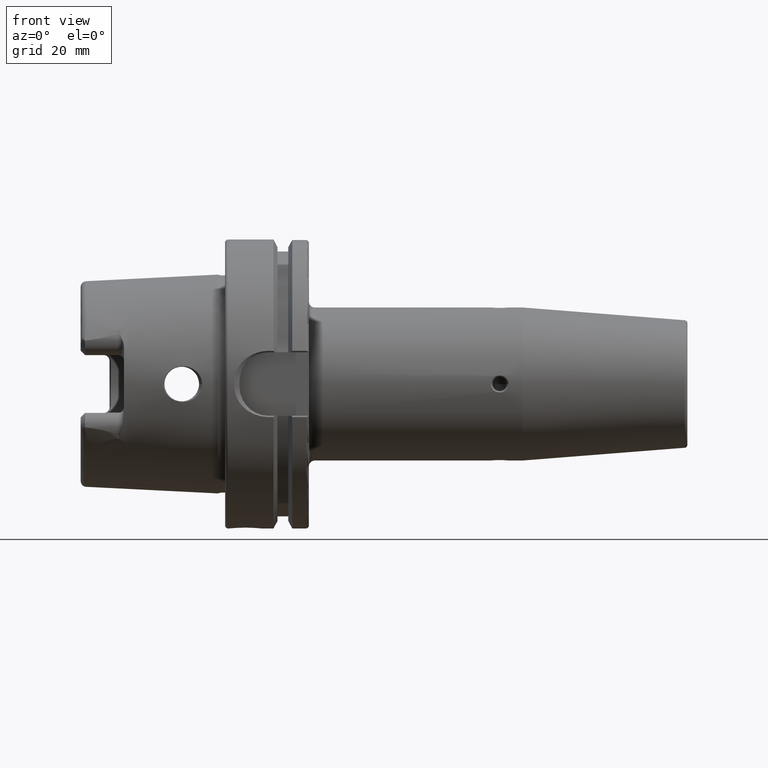
[diagram: clean part render]
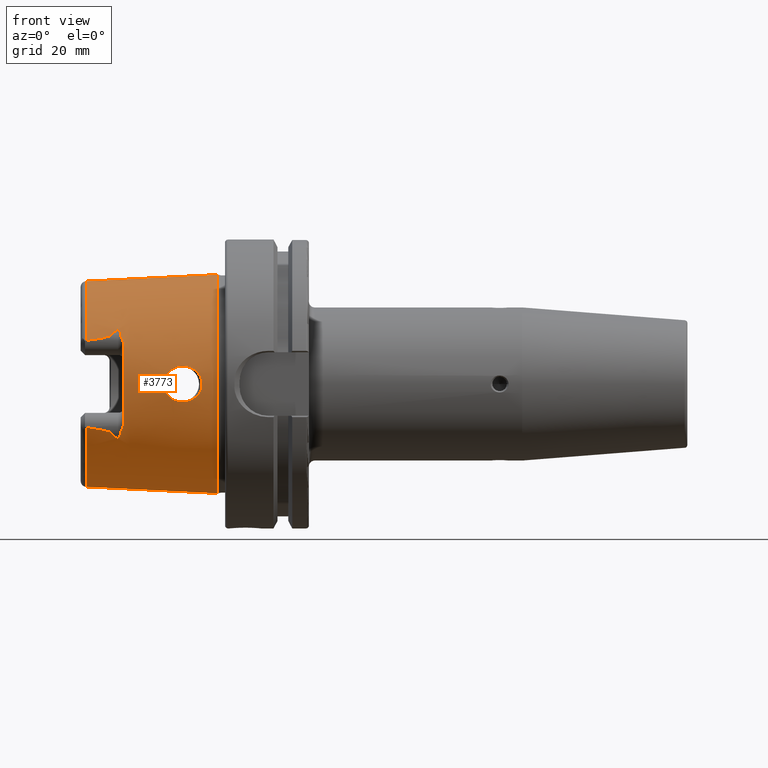
[diagram: same view with one face highlighted and labeled with its STEP entity id]
A machine part, front view. The second image highlights one B-rep face of the part: STEP entity #3773.
In plain terms, the highlighted conical surface has half-angle 2.868 deg.
Its self-contained STEP definition (entity closure, byte-faithful):
#563=CARTESIAN_POINT('',(-4.810007223652E1,0.E0,0.E0));
#564=DIRECTION('',(-1.E0,0.E0,0.E0));
#565=DIRECTION('',(0.E0,0.E0,-1.E0));
#566=AXIS2_PLACEMENT_3D('',#563,#564,#565);
#568=CARTESIAN_POINT('',(-4.810007223652E1,-3.224696179732E1,
-1.506217324853E1));
#569=CARTESIAN_POINT('',(-4.777360069517E1,-3.224548583089E1,
-1.510398132229E1));
#570=CARTESIAN_POINT('',(-4.714682661249E1,-3.224149457937E1,
-1.518642807106E1));
#571=CARTESIAN_POINT('',(-4.628821581015E1,-3.223275009228E1,
-1.530552436866E1));
#572=CARTESIAN_POINT('',(-4.550172633149E1,-3.222150544266E1,
-1.542067134837E1));
#573=CARTESIAN_POINT('',(-4.478272229601E1,-3.220801640303E1,
-1.553192810313E1));
#574=CARTESIAN_POINT('',(-4.412465498909E1,-3.219245805685E1,
-1.563973708073E1));
#575=CARTESIAN_POINT('',(-4.352812958915E1,-3.217518175865E1,
-1.574335904885E1));
#576=CARTESIAN_POINT('',(-4.297638076819E1,-3.215598290206E1,
-1.584517341014E1));
#577=CARTESIAN_POINT('',(-4.246249387710E1,-3.213465547674E1,
-1.594638174386E1));
#578=CARTESIAN_POINT('',(-4.199781054664E1,-3.211183219682E1,
-1.604444123174E1));
#579=CARTESIAN_POINT('',(-4.157660162559E1,-3.208752087521E1,
-1.614001806822E1));
#580=CARTESIAN_POINT('',(-4.119332287953E1,-3.206166014240E1,
-1.623388596894E1));
#581=CARTESIAN_POINT('',(-4.082879220140E1,-3.203269316235E1,
-1.633122029698E1));
#582=CARTESIAN_POINT('',(-4.050411641382E1,-3.200206181048E1,
-1.642681273963E1));
#583=CARTESIAN_POINT('',(-4.021075821857E1,-3.196901235432E1,
-1.652307556024E1));
#584=CARTESIAN_POINT('',(-3.994950560686E1,-3.193344313811E1,
-1.662009558326E1));
#585=CARTESIAN_POINT('',(-3.970678950238E1,-3.189232633230E1,
-1.672507831970E1));
#586=CARTESIAN_POINT('',(-3.949471925497E1,-3.184524591038E1,
-1.683731871866E1));
#587=CARTESIAN_POINT('',(-3.931880041211E1,-3.178931640268E1,
-1.696144986537E1));
#588=CARTESIAN_POINT('',(-3.923721705480E1,-3.174420636716E1,
-1.705426024174E1));
#589=CARTESIAN_POINT('',(-3.921043051466E1,-3.171811183804E1,
-1.710547363873E1));
#591=CARTESIAN_POINT('',(-3.921043051466E1,-3.171811183804E1,
-1.710547363873E1));
#592=CARTESIAN_POINT('',(-3.912164470743E1,-3.163161974835E1,
-1.727522392260E1));
#593=CARTESIAN_POINT('',(-3.888908420758E1,-3.146308992929E1,
-1.760598231598E1));
#594=CARTESIAN_POINT('',(-3.838653397102E1,-3.121775508141E1,
-1.808747906580E1));
#595=CARTESIAN_POINT('',(-3.775838340238E1,-3.098434250983E1,
-1.854557703089E1));
#596=CARTESIAN_POINT('',(-3.726505743858E1,-3.083475971722E1,
-1.883914979111E1));
#597=CARTESIAN_POINT('',(-3.7E1,-3.076088555164E1,-1.898413600456E1));
#599=CARTESIAN_POINT('',(-3.7E1,-3.076088555164E1,1.898413600456E1));
#600=CARTESIAN_POINT('',(-3.726516596225E1,-3.083478996385E1,1.883909042875E1));
#601=CARTESIAN_POINT('',(-3.775862170071E1,-3.098441804306E1,1.854542878857E1));
#602=CARTESIAN_POINT('',(-3.838674185116E1,-3.121784849884E1,1.808729572376E1));
#603=CARTESIAN_POINT('',(-3.888904434091E1,-3.146307659762E1,1.760600848086E1));
#604=CARTESIAN_POINT('',(-3.912163315465E1,-3.163160849403E1,1.727524601044E1));
#605=CARTESIAN_POINT('',(-3.921043051466E1,-3.171811183804E1,1.710547363873E1));
#607=CARTESIAN_POINT('',(-4.810007223652E1,-3.224696179732E1,1.506217324853E1));
#608=CARTESIAN_POINT('',(-4.777360069517E1,-3.224548583089E1,1.510398132229E1));
#609=CARTESIAN_POINT('',(-4.714682661249E1,-3.224149457937E1,1.518642807106E1));
#610=CARTESIAN_POINT('',(-4.628821581015E1,-3.223275009228E1,1.530552436866E1));
#611=CARTESIAN_POINT('',(-4.550172633149E1,-3.222150544266E1,1.542067134837E1));
#612=CARTESIAN_POINT('',(-4.478272229601E1,-3.220801640303E1,1.553192810313E1));
#613=CARTESIAN_POINT('',(-4.412465498909E1,-3.219245805685E1,1.563973708073E1));
#614=CARTESIAN_POINT('',(-4.352812958915E1,-3.217518175865E1,1.574335904885E1));
#615=CARTESIAN_POINT('',(-4.297638076819E1,-3.215598290206E1,1.584517341014E1));
#616=CARTESIAN_POINT('',(-4.246249387710E1,-3.213465547674E1,1.594638174386E1));
#617=CARTESIAN_POINT('',(-4.199781054664E1,-3.211183219682E1,1.604444123174E1));
#618=CARTESIAN_POINT('',(-4.157660162559E1,-3.208752087521E1,1.614001806822E1));
#619=CARTESIAN_POINT('',(-4.119332287953E1,-3.206166014240E1,1.623388596894E1));
#620=CARTESIAN_POINT('',(-4.082879220140E1,-3.203269316235E1,1.633122029698E1));
#621=CARTESIAN_POINT('',(-4.050411641382E1,-3.200206181048E1,1.642681273963E1));
#622=CARTESIAN_POINT('',(-4.021075821857E1,-3.196901235432E1,1.652307556024E1));
#623=CARTESIAN_POINT('',(-3.994950560686E1,-3.193344313811E1,1.662009558326E1));
#624=CARTESIAN_POINT('',(-3.970678950238E1,-3.189232633230E1,1.672507831970E1));
#625=CARTESIAN_POINT('',(-3.949471925497E1,-3.184524591038E1,1.683731871866E1));
#626=CARTESIAN_POINT('',(-3.931880041211E1,-3.178931640268E1,1.696144986537E1));
#627=CARTESIAN_POINT('',(-3.923721705480E1,-3.174420636716E1,1.705426024174E1));
#628=CARTESIAN_POINT('',(-3.921043051466E1,-3.171811183804E1,1.710547363873E1));
#630=CARTESIAN_POINT('',(-4.810007223652E1,0.E0,0.E0));
#631=DIRECTION('',(-1.E0,0.E0,0.E0));
#632=DIRECTION('',(0.E0,-9.060367502718E-1,4.231990160161E-1));
#633=AXIS2_PLACEMENT_3D('',#630,#631,#632);
#635=DIRECTION('',(-9.987493463681E-1,-1.021037123262E-10,-4.999743122625E-2));
#636=VECTOR('',#635,4.565708494450E1);
#637=CARTESIAN_POINT('',(-2.500088491128E0,4.656021286601E-9,3.787396633533E1));
#638=LINE('',#637,#636);
#639=CARTESIAN_POINT('',(-2.500088491128E0,-4.656014655163E-9,
-3.787396633533E1));
#640=CARTESIAN_POINT('',(-2.500088444509E0,-1.888740103895E0,
-3.787396633766E1));
#641=CARTESIAN_POINT('',(-2.516262056837E0,-5.666079603161E0,
-3.759267172396E1));
#642=CARTESIAN_POINT('',(-2.509761497294E0,-1.120563070156E1,
-3.632759442673E1));
#643=CARTESIAN_POINT('',(-2.511503316973E0,-1.649483625087E1,
-3.425192363796E1));
#644=CARTESIAN_POINT('',(-2.511036597801E0,-2.141558255922E1,
-3.141087897888E1));
#645=CARTESIAN_POINT('',(-2.511161654810E0,-2.585793792374E1,
-2.786823218789E1));
#646=CARTESIAN_POINT('',(-2.511128145945E0,-2.972267027537E1,
-2.370303773769E1));
#647=CARTESIAN_POINT('',(-2.511137124397E0,-3.292344714483E1,
-1.900836124902E1));
#648=CARTESIAN_POINT('',(-2.511134719454E0,-3.538876865595E1,
-1.388906812416E1));
#649=CARTESIAN_POINT('',(-2.511135360772E0,-3.706356354030E1,
-8.459516514521E0));
#650=CARTESIAN_POINT('',(-2.511135200443E0,-3.791041966799E1,
-2.840993193300E0));
#651=CARTESIAN_POINT('',(-2.511135200443E0,-3.791041966828E1,2.840993189549E0));
#652=CARTESIAN_POINT('',(-2.511135360772E0,-3.706356354113E1,8.459516510869E0));
#653=CARTESIAN_POINT('',(-2.511134719454E0,-3.538876865733E1,1.388906812065E1));
#654=CARTESIAN_POINT('',(-2.511137124397E0,-3.292344714673E1,1.900836124573E1));
#655=CARTESIAN_POINT('',(-2.511128145943E0,-2.972267027773E1,2.370303773475E1));
#656=CARTESIAN_POINT('',(-2.511161654817E0,-2.585793792634E1,2.786823218546E1));
#657=CARTESIAN_POINT('',(-2.511036597775E0,-2.141558256255E1,3.141087897660E1));
#658=CARTESIAN_POINT('',(-2.511503317070E0,-1.649483625404E1,3.425192363652E1));
#659=CARTESIAN_POINT('',(-2.509761496931E0,-1.120563070542E1,3.632759442522E1));
#660=CARTESIAN_POINT('',(-2.516262058192E0,-5.666079609414E0,3.759267172378E1));
#661=CARTESIAN_POINT('',(-2.500088441588E0,-1.888740095305E0,3.787396633781E1));
#662=CARTESIAN_POINT('',(-2.500088491128E0,4.656021286601E-9,3.787396633533E1));
#664=DIRECTION('',(-9.987493463681E-1,1.021044836784E-10,4.999743122625E-2));
#665=VECTOR('',#664,4.565708494450E1);
#666=CARTESIAN_POINT('',(-2.500088491128E0,-4.656014655163E-9,
-3.787396633533E1));
#667=LINE('',#666,#665);
#668=CARTESIAN_POINT('',(-7.947522918154E0,-3.760282678591E1,0.E0));
#669=CARTESIAN_POINT('',(-7.947522918154E0,-3.760282678591E1,
-4.555508224927E-1));
#670=CARTESIAN_POINT('',(-8.055675288546E0,-3.758101628938E1,
-1.328193348279E0));
#671=CARTESIAN_POINT('',(-8.493548636534E0,-3.749561595830E1,
-2.535047034482E0));
#672=CARTESIAN_POINT('',(-9.152935494162E0,-3.737470133747E1,
-3.591127970282E0));
#673=CARTESIAN_POINT('',(-1.002178632310E1,-3.722964227332E1,
-4.512738618349E0));
#674=CARTESIAN_POINT('',(-1.107124795470E1,-3.707635954467E1,
-5.264977959031E0));
#675=CARTESIAN_POINT('',(-1.227287116311E1,-3.693159659721E1,
-5.817657091852E0));
#676=CARTESIAN_POINT('',(-1.351566791218E1,-3.681688016313E1,
-6.131933716595E0));
#677=CARTESIAN_POINT('',(-1.478434348908E1,-3.673651957139E1,
-6.225454463541E0));
#678=CARTESIAN_POINT('',(-1.604517638025E1,-3.669404043003E1,
-6.098337071119E0));
#679=CARTESIAN_POINT('',(-1.727521917891E1,-3.668872621372E1,
-5.749013770627E0));
#680=CARTESIAN_POINT('',(-1.842700103265E1,-3.671636593220E1,
-5.179047617888E0));
#681=CARTESIAN_POINT('',(-1.944313443002E1,-3.676688688144E1,
-4.408225856431E0));
#682=CARTESIAN_POINT('',(-2.027218216929E1,-3.682604447292E1,
-3.477293664204E0));
#683=CARTESIAN_POINT('',(-2.089290894033E1,-3.688073113132E1,
-2.418641470787E0));
#684=CARTESIAN_POINT('',(-2.128679373994E1,-3.692005856227E1,
-1.247023981064E0));
#685=CARTESIAN_POINT('',(-2.137954779159E1,-3.692989749565E1,
-4.244848296423E-1));
#686=CARTESIAN_POINT('',(-2.137954779159E1,-3.692989749565E1,0.E0));
#688=CARTESIAN_POINT('',(-2.137954779159E1,-3.692989749565E1,0.E0));
#689=CARTESIAN_POINT('',(-2.137954779159E1,-3.692989749565E1,
4.264135942010E-1));
#690=CARTESIAN_POINT('',(-2.128595961948E1,-3.691996945685E1,1.252150941059E0));
#691=CARTESIAN_POINT('',(-2.088941444788E1,-3.688039195179E1,2.426779576080E0));
#692=CARTESIAN_POINT('',(-2.026577448315E1,-3.682552484318E1,3.486113527143E0));
#693=CARTESIAN_POINT('',(-1.943551634685E1,-3.676642189357E1,4.415164074013E0));
#694=CARTESIAN_POINT('',(-1.841857939338E1,-3.671605488531E1,5.184200627117E0));
#695=CARTESIAN_POINT('',(-1.726611426804E1,-3.668862236289E1,5.752584579236E0));
#696=CARTESIAN_POINT('',(-1.603361556245E1,-3.669424419724E1,6.100621863643E0));
#697=CARTESIAN_POINT('',(-1.477234526940E1,-3.673711146755E1,6.225557863657E0));
#698=CARTESIAN_POINT('',(-1.350543953241E1,-3.681770479086E1,6.130121534313E0));
#699=CARTESIAN_POINT('',(-1.226565956319E1,-3.693238667892E1,5.814969355409E0));
#700=CARTESIAN_POINT('',(-1.106502493367E1,-3.707718110111E1,5.261494315959E0));
#701=CARTESIAN_POINT('',(-1.001374824802E1,-3.723088925308E1,4.506018890345E0));
#702=CARTESIAN_POINT('',(-9.145116709744E0,-3.737607814819E1,3.581153174075E0));
#703=CARTESIAN_POINT('',(-8.488187190568E0,-3.749664237626E1,2.523653152808E0));
#704=CARTESIAN_POINT('',(-8.054338230538E0,-3.758128804521E1,1.320612145641E0));
#705=CARTESIAN_POINT('',(-7.947522918154E0,-3.760282678591E1,
4.525973866808E-1));
#706=CARTESIAN_POINT('',(-7.947522918154E0,-3.760282678591E1,0.E0));
#900=CARTESIAN_POINT('',(-3.7E1,-3.076088555164E1,1.898413600456E1));
#901=CARTESIAN_POINT('',(-3.696300346070E1,-3.075057424521E1,1.900437308288E1));
#902=CARTESIAN_POINT('',(-3.688959362515E1,-3.074356813747E1,1.902267693861E1));
#903=CARTESIAN_POINT('',(-3.678717103993E1,-3.076993811952E1,1.898980592562E1));
#904=CARTESIAN_POINT('',(-3.670717497490E1,-3.081555772376E1,1.892338225532E1));
#905=CARTESIAN_POINT('',(-3.664282156869E1,-3.086840687654E1,1.884325879840E1));
#906=CARTESIAN_POINT('',(-3.658693468209E1,-3.092757376666E1,1.875141890969E1));
#907=CARTESIAN_POINT('',(-3.653543924316E1,-3.099451664482E1,1.864560368453E1));
#908=CARTESIAN_POINT('',(-3.648674555062E1,-3.107060775927E1,1.852334637555E1));
#909=CARTESIAN_POINT('',(-3.644031089310E1,-3.115701721087E1,1.838227554660E1));
#910=CARTESIAN_POINT('',(-3.639654646356E1,-3.125383366126E1,1.822160873289E1));
#911=CARTESIAN_POINT('',(-3.635603198371E1,-3.136067531358E1,1.804126554519E1));
#912=CARTESIAN_POINT('',(-3.631936942786E1,-3.147716561360E1,1.784105024095E1));
#913=CARTESIAN_POINT('',(-3.628791760574E1,-3.159948612446E1,1.762678906248E1));
#914=CARTESIAN_POINT('',(-3.626211937912E1,-3.172522578953E1,1.740218002465E1));
#915=CARTESIAN_POINT('',(-3.624894170509E1,-3.180872875559E1,1.725003259398E1));
#916=CARTESIAN_POINT('',(-3.624325681735E1,-3.185059775442E1,1.717297858482E1));
#928=CARTESIAN_POINT('',(-3.624325681735E1,-3.185059775442E1,1.717297858482E1));
#929=CARTESIAN_POINT('',(-3.623191138929E1,-3.193415643423E1,1.701920057579E1));
#930=CARTESIAN_POINT('',(-3.616326238103E1,-3.210457855236E1,1.670495200735E1));
#931=CARTESIAN_POINT('',(-3.597276647849E1,-3.236467070497E1,1.621698596052E1));
#932=CARTESIAN_POINT('',(-3.573678938384E1,-3.264094753344E1,1.568146645377E1));
#933=CARTESIAN_POINT('',(-3.549020118004E1,-3.292965234551E1,1.509620295326E1));
#934=CARTESIAN_POINT('',(-3.525452488383E1,-3.323754171230E1,1.443718112866E1));
#935=CARTESIAN_POINT('',(-3.505907344873E1,-3.357655903791E1,1.365826739844E1));
#936=CARTESIAN_POINT('',(-3.5E1,-3.380488570996E1,1.308502549625E1));
#937=CARTESIAN_POINT('',(-3.5E1,-3.391909039216E1,1.278196417599E1));
#953=CARTESIAN_POINT('',(-3.5E1,0.E0,0.E0));
#954=DIRECTION('',(1.E0,0.E0,0.E0));
#955=DIRECTION('',(0.E0,-9.357628524911E-1,3.526299532055E-1));
#956=AXIS2_PLACEMENT_3D('',#953,#954,#955);
#1034=CARTESIAN_POINT('',(-3.5E1,-3.391909039216E1,-1.278196417599E1));
#1035=CARTESIAN_POINT('',(-3.5E1,-3.380501039759E1,-1.308469461667E1));
#1036=CARTESIAN_POINT('',(-3.505908774147E1,-3.357745007744E1,
-1.365585939140E1));
#1037=CARTESIAN_POINT('',(-3.525042055663E1,-3.324402086484E1,
-1.442256248264E1));
#1038=CARTESIAN_POINT('',(-3.548227630092E1,-3.293936906339E1,
-1.507588616459E1));
#1039=CARTESIAN_POINT('',(-3.572698971418E1,-3.265218924778E1,
-1.565919539189E1));
#1040=CARTESIAN_POINT('',(-3.596526988721E1,-3.237391382928E1,
-1.619945958225E1));
#1041=CARTESIAN_POINT('',(-3.616053999278E1,-3.210977569537E1,
-1.669536103391E1));
#1042=CARTESIAN_POINT('',(-3.623165524602E1,-3.193604292046E1,
-1.701572876296E1));
#1043=CARTESIAN_POINT('',(-3.624325681735E1,-3.185059775442E1,
-1.717297858482E1));
#1050=CARTESIAN_POINT('',(-3.624325681735E1,-3.185059775442E1,
-1.717297858482E1));
#1051=CARTESIAN_POINT('',(-3.624958506384E1,-3.180399044092E1,
-1.725875279633E1));
#1052=CARTESIAN_POINT('',(-3.626411787839E1,-3.171397135922E1,
-1.742250904954E1));
#1053=CARTESIAN_POINT('',(-3.629024187125E1,-3.158985119241E1,
-1.764375867507E1));
#1054=CARTESIAN_POINT('',(-3.632021701605E1,-3.147476949397E1,
-1.784511290104E1));
#1055=CARTESIAN_POINT('',(-3.635382487274E1,-3.136761508367E1,
-1.802935467781E1));
#1056=CARTESIAN_POINT('',(-3.639131283352E1,-3.126690266088E1,
-1.819966975746E1));
#1057=CARTESIAN_POINT('',(-3.643298895139E1,-3.117221067372E1,
-1.835721947596E1));
#1058=CARTESIAN_POINT('',(-3.647836141856E1,-3.108512701392E1,
-1.849980467855E1));
#1059=CARTESIAN_POINT('',(-3.652815028119E1,-3.100471111734E1,
-1.862939045525E1));
#1060=CARTESIAN_POINT('',(-3.658516586268E1,-3.092907924914E1,
-1.874914190678E1));
#1061=CARTESIAN_POINT('',(-3.664762859130E1,-3.086344535957E1,
-1.885093545326E1));
#1062=CARTESIAN_POINT('',(-3.671708423307E1,-3.080865596882E1,
-1.893366823227E1));
#1063=CARTESIAN_POINT('',(-3.680002705228E1,-3.076449334807E1,
-1.899739083315E1));
#1064=CARTESIAN_POINT('',(-3.690466416396E1,-3.074342724973E1,
-1.902147012830E1));
#1065=CARTESIAN_POINT('',(-3.696791807797E1,-3.075194399832E1,
-1.900168479105E1));
#1066=CARTESIAN_POINT('',(-3.7E1,-3.076088555164E1,-1.898413600456E1));
#2822=VERTEX_POINT('',#639);
#2823=VERTEX_POINT('',#662);
#2923=CARTESIAN_POINT('',(-3.5E1,-3.391909039216E1,-1.278196417599E1));
#2925=VERTEX_POINT('',#2923);
#2926=CARTESIAN_POINT('',(-3.7E1,-3.076088555164E1,-1.898413600456E1));
#2927=VERTEX_POINT('',#2926);
#2929=CARTESIAN_POINT('',(-3.5E1,-3.391909039216E1,1.278196417599E1));
#2931=VERTEX_POINT('',#2929);
#2936=CARTESIAN_POINT('',(-3.7E1,-3.076088555164E1,1.898413600456E1));
#2937=VERTEX_POINT('',#2936);
#2938=VERTEX_POINT('',#591);
#2939=CARTESIAN_POINT('',(-3.921043051466E1,-3.171811183804E1,
1.710547363873E1));
#2940=VERTEX_POINT('',#2939);
#2941=VERTEX_POINT('',#916);
#2942=VERTEX_POINT('',#1050);
#2991=CARTESIAN_POINT('',(-4.810007223652E1,0.E0,-3.559122937082E1));
#2992=CARTESIAN_POINT('',(-4.810007223652E1,-3.224696179732E1,
-1.506217324853E1));
#2993=VERTEX_POINT('',#2991);
#2994=VERTEX_POINT('',#2992);
#2997=CARTESIAN_POINT('',(-4.810007223652E1,0.E0,3.559122937082E1));
#2999=VERTEX_POINT('',#2997);
#3001=CARTESIAN_POINT('',(-4.810007223652E1,-3.224696179732E1,
1.506217324853E1));
#3002=VERTEX_POINT('',#3001);
#3082=CARTESIAN_POINT('',(-7.947522918154E0,-3.760282678591E1,0.E0));
#3084=VERTEX_POINT('',#3082);
#3086=CARTESIAN_POINT('',(-2.137954779159E1,-3.692989749565E1,0.E0));
#3088=VERTEX_POINT('',#3086);
#3737=CARTESIAN_POINT('',(-2.530012460967E1,0.E0,0.E0));
#3738=DIRECTION('',(1.E0,0.E0,0.E0));
#3739=DIRECTION('',(0.E0,0.E0,1.E0));
#3740=AXIS2_PLACEMENT_3D('',#3737,#3738,#3739);
#3741=CONICAL_SURFACE('',#3740,3.673348102081E1,2.868056E0);
#3742=ORIENTED_EDGE('',*,*,#3320,.T.);
#3744=ORIENTED_EDGE('',*,*,#3743,.T.);
#3746=ORIENTED_EDGE('',*,*,#3745,.T.);
#3748=ORIENTED_EDGE('',*,*,#3747,.F.);
#3750=ORIENTED_EDGE('',*,*,#3749,.F.);
#3752=ORIENTED_EDGE('',*,*,#3751,.F.);
#3754=ORIENTED_EDGE('',*,*,#3753,.F.);
#3756=ORIENTED_EDGE('',*,*,#3755,.F.);
#3758=ORIENTED_EDGE('',*,*,#3757,.T.);
#3760=ORIENTED_EDGE('',*,*,#3759,.F.);
#3762=ORIENTED_EDGE('',*,*,#3761,.T.);
#3763=ORIENTED_EDGE('',*,*,#3284,.F.);
#3765=ORIENTED_EDGE('',*,*,#3764,.F.);
#3766=ORIENTED_EDGE('',*,*,#3280,.T.);
#3767=EDGE_LOOP('',(#3742,#3744,#3746,#3748,#3750,#3752,#3754,#3756,#3758,#3760,
#3762,#3763,#3765,#3766));
#3768=FACE_OUTER_BOUND('',#3767,.F.);
#3769=ORIENTED_EDGE('',*,*,#3730,.F.);
#3770=ORIENTED_EDGE('',*,*,#3719,.F.);
#3771=EDGE_LOOP('',(#3769,#3770));
#3772=FACE_BOUND('',#3771,.F.);
#3773=ADVANCED_FACE('',(#3768,#3772),#3741,.T.);
#567=CIRCLE('',#566,3.559122937082E1);
#590=B_SPLINE_CURVE_WITH_KNOTS('',3,(#568,#569,#570,#571,#572,#573,#574,#575,
#576,#577,#578,#579,#580,#581,#582,#583,#584,#585,#586,#587,#588,#589),
.UNSPECIFIED.,.F.,.F.,(4,1,1,1,1,1,1,1,1,1,1,1,1,1,1,1,1,1,1,4),(0.E0,
5.263157894737E-2,1.052631578947E-1,1.578947368421E-1,2.105263157895E-1,
2.631578947368E-1,3.157894736842E-1,3.684210526316E-1,4.210526315789E-1,
4.736842105263E-1,5.263157894737E-1,5.789473684211E-1,6.315789473684E-1,
6.842105263158E-1,7.368421052632E-1,7.894736842105E-1,8.421052631579E-1,
8.947368421053E-1,9.473684210526E-1,1.E0),.UNSPECIFIED.);
#598=B_SPLINE_CURVE_WITH_KNOTS('',3,(#591,#592,#593,#594,#595,#596,#597),
.UNSPECIFIED.,.F.,.F.,(4,1,1,1,4),(0.E0,2.5E-1,5.E-1,7.5E-1,1.E0),
.UNSPECIFIED.);
#606=B_SPLINE_CURVE_WITH_KNOTS('',3,(#599,#600,#601,#602,#603,#604,#605),
.UNSPECIFIED.,.F.,.F.,(4,1,1,1,4),(0.E0,2.5E-1,5.E-1,7.5E-1,1.E0),
.UNSPECIFIED.);
#629=B_SPLINE_CURVE_WITH_KNOTS('',3,(#607,#608,#609,#610,#611,#612,#613,#614,
#615,#616,#617,#618,#619,#620,#621,#622,#623,#624,#625,#626,#627,#628),
.UNSPECIFIED.,.F.,.F.,(4,1,1,1,1,1,1,1,1,1,1,1,1,1,1,1,1,1,1,4),(0.E0,
5.263157894737E-2,1.052631578947E-1,1.578947368421E-1,2.105263157895E-1,
2.631578947368E-1,3.157894736842E-1,3.684210526316E-1,4.210526315789E-1,
4.736842105263E-1,5.263157894737E-1,5.789473684211E-1,6.315789473684E-1,
6.842105263158E-1,7.368421052632E-1,7.894736842105E-1,8.421052631579E-1,
8.947368421053E-1,9.473684210526E-1,1.E0),.UNSPECIFIED.);
#634=CIRCLE('',#633,3.559122937082E1);
#663=B_SPLINE_CURVE_WITH_KNOTS('',3,(#639,#640,#641,#642,#643,#644,#645,#646,
#647,#648,#649,#650,#651,#652,#653,#654,#655,#656,#657,#658,#659,#660,#661,
#662),.UNSPECIFIED.,.F.,.F.,(4,1,1,1,1,1,1,1,1,1,1,1,1,1,1,1,1,1,1,1,1,4),(0.E0,
4.761904761905E-2,9.523809523810E-2,1.428571428571E-1,1.904761904762E-1,
2.380952380952E-1,2.857142857143E-1,3.333333333333E-1,3.809523809524E-1,
4.285714285714E-1,4.761904761905E-1,5.238095238095E-1,5.714285714286E-1,
6.190476190476E-1,6.666666666667E-1,7.142857142857E-1,7.619047619048E-1,
8.095238095238E-1,8.571428571429E-1,9.047619047619E-1,9.523809523810E-1,1.E0),
.UNSPECIFIED.);
#687=B_SPLINE_CURVE_WITH_KNOTS('',3,(#668,#669,#670,#671,#672,#673,#674,#675,
#676,#677,#678,#679,#680,#681,#682,#683,#684,#685,#686),.UNSPECIFIED.,.F.,.F.,
(4,1,1,1,1,1,1,1,1,1,1,1,1,1,1,1,4),(0.E0,6.25E-2,1.25E-1,1.875E-1,2.5E-1,
3.125E-1,3.75E-1,4.375E-1,5.E-1,5.625E-1,6.25E-1,6.875E-1,7.5E-1,8.125E-1,
8.75E-1,9.375E-1,1.E0),.UNSPECIFIED.);
#707=B_SPLINE_CURVE_WITH_KNOTS('',3,(#688,#689,#690,#691,#692,#693,#694,#695,
#696,#697,#698,#699,#700,#701,#702,#703,#704,#705,#706),.UNSPECIFIED.,.F.,.F.,
(4,1,1,1,1,1,1,1,1,1,1,1,1,1,1,1,4),(0.E0,6.25E-2,1.25E-1,1.875E-1,2.5E-1,
3.125E-1,3.75E-1,4.375E-1,5.E-1,5.625E-1,6.25E-1,6.875E-1,7.5E-1,8.125E-1,
8.75E-1,9.375E-1,1.E0),.UNSPECIFIED.);
#917=B_SPLINE_CURVE_WITH_KNOTS('',3,(#900,#901,#902,#903,#904,#905,#906,#907,
#908,#909,#910,#911,#912,#913,#914,#915,#916),.UNSPECIFIED.,.F.,.F.,(4,1,1,1,1,
1,1,1,1,1,1,1,1,1,4),(0.E0,7.142857142857E-2,1.428571428571E-1,
2.142857142857E-1,2.857142857143E-1,3.571428571429E-1,4.285714285714E-1,5.E-1,
5.714285714286E-1,6.428571428571E-1,7.142857142857E-1,7.857142857143E-1,
8.571428571429E-1,9.285714285714E-1,1.E0),.UNSPECIFIED.);
#938=B_SPLINE_CURVE_WITH_KNOTS('',3,(#928,#929,#930,#931,#932,#933,#934,#935,
#936,#937),.UNSPECIFIED.,.F.,.F.,(4,1,1,1,1,1,1,4),(0.E0,1.428571428571E-1,
2.857142857143E-1,4.285714285714E-1,5.714285714286E-1,7.142857142857E-1,
8.571428571429E-1,1.E0),.UNSPECIFIED.);
#957=CIRCLE('',#956,3.624752820852E1);
#1044=B_SPLINE_CURVE_WITH_KNOTS('',3,(#1034,#1035,#1036,#1037,#1038,#1039,#1040,
#1041,#1042,#1043),.UNSPECIFIED.,.F.,.F.,(4,1,1,1,1,1,1,4),(0.E0,
1.428571428571E-1,2.857142857143E-1,4.285714285714E-1,5.714285714286E-1,
7.142857142857E-1,8.571428571429E-1,1.E0),.UNSPECIFIED.);
#1067=B_SPLINE_CURVE_WITH_KNOTS('',3,(#1050,#1051,#1052,#1053,#1054,#1055,#1056,
#1057,#1058,#1059,#1060,#1061,#1062,#1063,#1064,#1065,#1066),.UNSPECIFIED.,.F.,
.F.,(4,1,1,1,1,1,1,1,1,1,1,1,1,1,4),(0.E0,7.142857142857E-2,1.428571428571E-1,
2.142857142857E-1,2.857142857143E-1,3.571428571429E-1,4.285714285714E-1,5.E-1,
5.714285714286E-1,6.428571428571E-1,7.142857142857E-1,7.857142857143E-1,
8.571428571429E-1,9.285714285714E-1,1.E0),.UNSPECIFIED.);
#3280=EDGE_CURVE('',#2822,#2993,#667,.T.);
#3284=EDGE_CURVE('',#2823,#2999,#638,.T.);
#3320=EDGE_CURVE('',#2993,#2994,#567,.T.);
#3719=EDGE_CURVE('',#3088,#3084,#707,.T.);
#3730=EDGE_CURVE('',#3084,#3088,#687,.T.);
#3743=EDGE_CURVE('',#2994,#2938,#590,.T.);
#3745=EDGE_CURVE('',#2938,#2927,#598,.T.);
#3747=EDGE_CURVE('',#2942,#2927,#1067,.T.);
#3749=EDGE_CURVE('',#2925,#2942,#1044,.T.);
#3751=EDGE_CURVE('',#2931,#2925,#957,.T.);
#3753=EDGE_CURVE('',#2941,#2931,#938,.T.);
#3755=EDGE_CURVE('',#2937,#2941,#917,.T.);
#3757=EDGE_CURVE('',#2937,#2940,#606,.T.);
#3759=EDGE_CURVE('',#3002,#2940,#629,.T.);
#3761=EDGE_CURVE('',#3002,#2999,#634,.T.);
#3764=EDGE_CURVE('',#2822,#2823,#663,.T.);